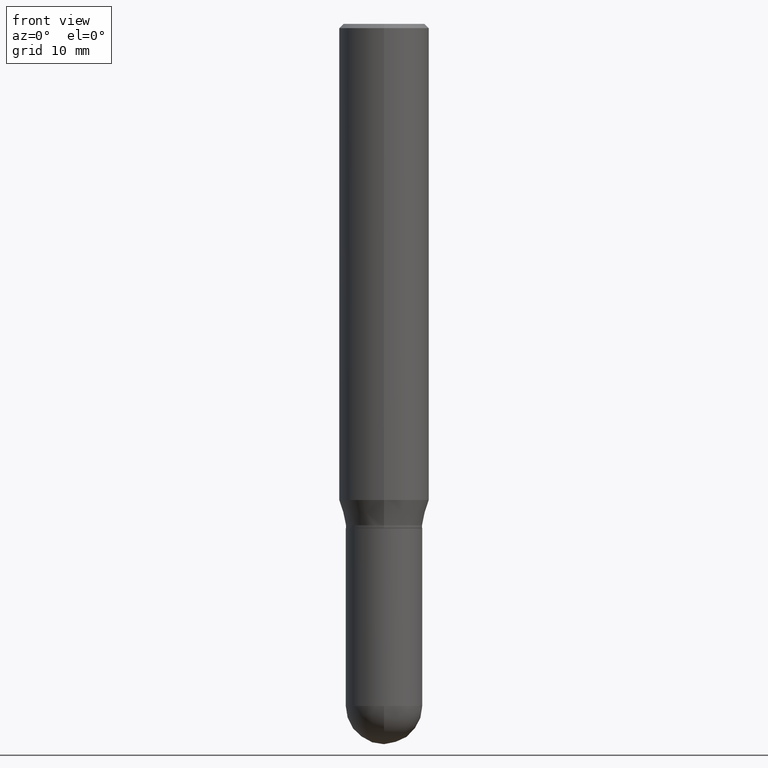
[diagram: clean part render]
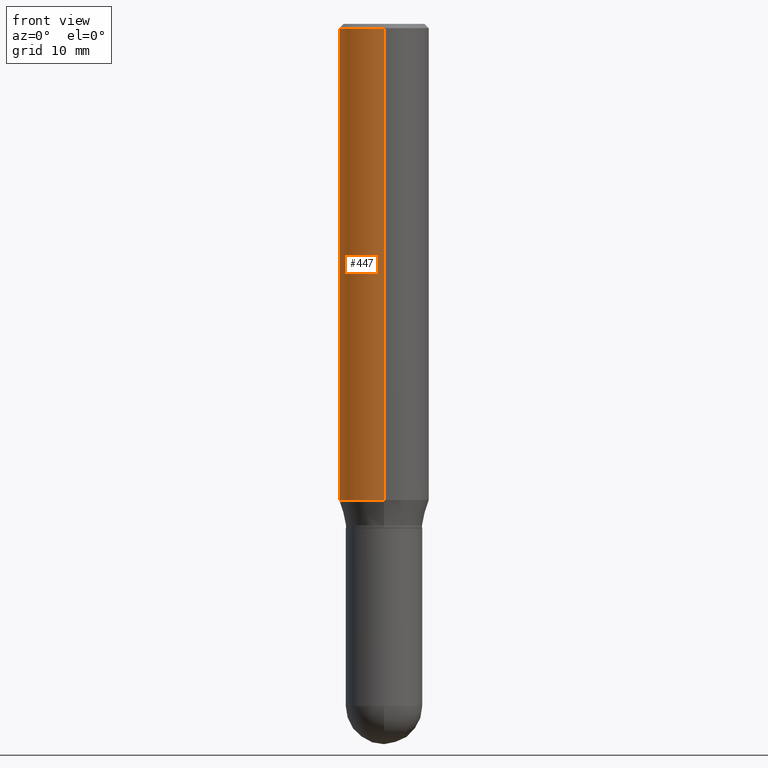
[diagram: same view with one face highlighted and labeled with its STEP entity id]
A machine part, front view. The second image highlights one B-rep face of the part: STEP entity #447.
In plain terms, the highlighted cylindrical surface (partial cylindrical patch) has radius 3.9688 mm, axis along (-0, 0, 1).
Its self-contained STEP definition (entity closure, byte-faithful):
#13 = ORIENTED_EDGE ( 'NONE', *, *, #376, .T. ) ;
#16 = VECTOR ( 'NONE', #461, 39.37007874015748143 ) ;
#19 = CARTESIAN_POINT ( 'NONE',  ( -1.091087918388438547E-15, -0.1562500000000057454, -1.652483408562509304 ) ) ;
#21 = DIRECTION ( 'NONE',  ( -6.982962677686265133E-15, -1.000000000000000000, 3.491341170506808654E-15 ) ) ;
#24 = DIRECTION ( 'NONE',  ( -2.445566685211260187E-29, 3.491341170506808259E-15, 1.000000000000000000 ) ) ;
#98 = VERTEX_POINT ( 'NONE', #303 ) ;
#116 = CARTESIAN_POINT ( 'NONE',  ( 1.110223024625156343E-15, 0.1562500000000000000, -5.455220578916888275E-16 ) ) ;
#118 = ORIENTED_EDGE ( 'NONE', *, *, #371, .F. ) ;
#133 = CARTESIAN_POINT ( 'NONE',  ( -1.091087918388478779E-15, -0.1562500000000000833, -0.01499999999999960566 ) ) ;
#136 = CYLINDRICAL_SURFACE ( 'NONE', #467, 0.1562500000000000000 ) ;
#147 = AXIS2_PLACEMENT_3D ( 'NONE', #321, #274, #316 ) ;
#169 = DIRECTION ( 'NONE',  ( -2.445566685211260187E-29, 3.491341170506808259E-15, 1.000000000000000000 ) ) ;
#174 = LINE ( 'NONE', #458, #16 ) ;
#204 = DIRECTION ( 'NONE',  ( -2.445566685211260467E-29, 3.491341170506808259E-15, 1.000000000000000000 ) ) ;
#262 = ORIENTED_EDGE ( 'NONE', *, *, #483, .T. ) ;
#274 = DIRECTION ( 'NONE',  ( -2.445566685211260187E-29, 3.491341170506808259E-15, 1.000000000000000000 ) ) ;
#294 = CARTESIAN_POINT ( 'NONE',  ( 0.000000000000000000, 0.000000000000000000, 0.000000000000000000 ) ) ;
#297 = VECTOR ( 'NONE', #204, 39.37007874015748143 ) ;
#303 = CARTESIAN_POINT ( 'NONE',  ( 1.110223024625197364E-15, 0.1562499999999999445, -0.01500000000000069854 ) ) ;
#313 = LINE ( 'NONE', #116, #297 ) ;
#316 = DIRECTION ( 'NONE',  ( -6.982962677686265133E-15, -1.000000000000000000, 3.496765431890256920E-15 ) ) ;
#321 = CARTESIAN_POINT ( 'NONE',  ( 3.668350027816927222E-31, -5.237011755760265859E-17, -0.01500000000000015210 ) ) ;
#345 = CIRCLE ( 'NONE', #450, 0.1562500000000000000 ) ;
#354 = CIRCLE ( 'NONE', #147, 0.1562500000000000000 ) ;
#360 = CARTESIAN_POINT ( 'NONE',  ( 1.110223024625197167E-15, 0.1562499999999942824, -1.652483408562510414 ) ) ;
#370 = VERTEX_POINT ( 'NONE', #360 ) ;
#371 = EDGE_CURVE ( 'NONE', #370, #98, #313, .T. ) ;
#376 = EDGE_CURVE ( 'NONE', #370, #421, #345, .T. ) ;
#383 = EDGE_CURVE ( 'NONE', #98, #445, #354, .T. ) ;
#402 = ORIENTED_EDGE ( 'NONE', *, *, #383, .F. ) ;
#408 = DIRECTION ( 'NONE',  ( -6.982962677686265133E-15, -1.000000000000000000, 3.496765431890256920E-15 ) ) ;
#420 = FACE_OUTER_BOUND ( 'NONE', #462, .T. ) ;
#421 = VERTEX_POINT ( 'NONE', #19 ) ;
#445 = VERTEX_POINT ( 'NONE', #133 ) ;
#447 = ADVANCED_FACE ( 'NONE', ( #420 ), #136, .T. ) ;
#450 = AXIS2_PLACEMENT_3D ( 'NONE', #476, #169, #408 ) ;
#458 = CARTESIAN_POINT ( 'NONE',  ( -1.091087918388478976E-15, -0.1562500000000000000, 5.455220578916888275E-16 ) ) ;
#461 = DIRECTION ( 'NONE',  ( -2.445566685211260467E-29, 3.491341170506808259E-15, 1.000000000000000000 ) ) ;
#462 = EDGE_LOOP ( 'NONE', ( #118, #13, #262, #402 ) ) ;
#467 = AXIS2_PLACEMENT_3D ( 'NONE', #294, #24, #21 ) ;
#476 = CARTESIAN_POINT ( 'NONE',  ( 4.041258371844822097E-29, -5.769383357893714632E-15, -1.652483408562509748 ) ) ;
#483 = EDGE_CURVE ( 'NONE', #421, #445, #174, .T. ) ;